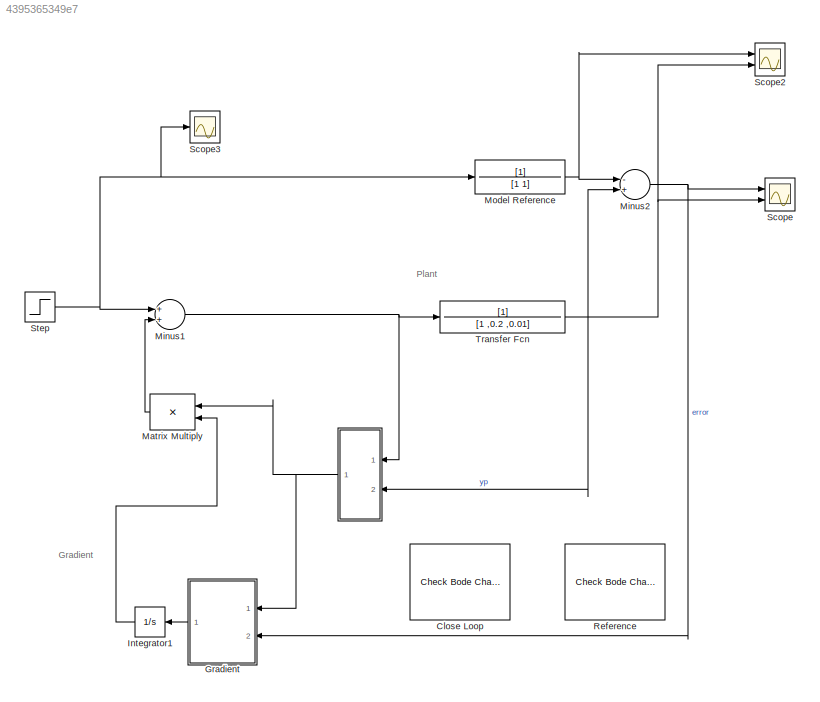
MODEL slx_4395365349e7
KIND model
CONFIG AbsTol = auto
CONFIG EnableMultiTasking = off
CONFIG FixedStep = auto
CONFIG MaxStep = auto
CONFIG MinStep = auto
CONFIG RelTol = 1e-3
CONFIG SampleTimeConstraint = Unconstrained
CONFIG Solver = VariableStepAuto
CONFIG SolverName = VariableStepAuto
CONFIG StartTime = 0.0
CONFIG StopTime = 500
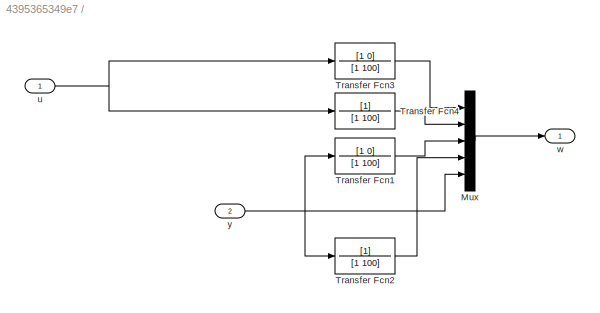
BLOCK [SubSystem]  
  Ports = [2, 1]
  RequestExecContextInheritance = off
BLOCK [Mux]  /Mux
  DisplayOption = bar
  Inputs = 5
  Ports = [5, 1]
BLOCK [TransferFcn]  /Transfer Fcn1
  Denominator = [1 100]
  Numerator = [1 0]
BLOCK [TransferFcn]  /Transfer Fcn2
  Denominator = [1 100]
BLOCK [TransferFcn]  /Transfer Fcn3
  Denominator = [1 100]
  Numerator = [1 0]
BLOCK [TransferFcn]  /Transfer Fcn4
  Denominator = [1 100]
BLOCK [Inport]  /u 
  IconDisplay = Port number
BLOCK [Outport]  /w
  IconDisplay = Port number
BLOCK [Inport]  /y 
  IconDisplay = Port number
  Port = 2
BLOCK [Reference] Close Loop  REF=slctrlblks/Model Verification/Check Bode 
Characteristics
  InstantiateOnLoad = on
  Ports = []
  SourceBlock = slctrlblks/Model Verification/Check Bode \nCharacteristics
  SourceProductBaseCode = SD
  SourceProductName = Simulink Control Design
  SourceType = Checks_Bode
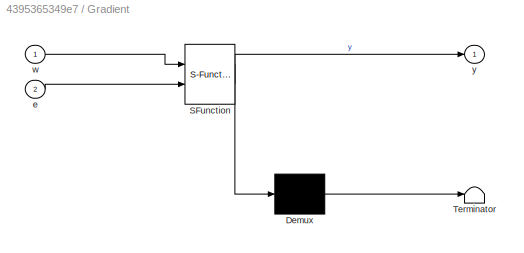
BLOCK [SubSystem] Gradient
  ErrorFcn = Stateflow.Translate.translate
  PermitHierarchicalResolution = ExplicitOnly
  Ports = [2, 1]
  RequestExecContextInheritance = off
  SFBlockType = MATLAB Function
  TreatAsAtomicUnit = on
BLOCK [Demux] Gradient/ Demux 
  Outputs = 1
  Ports = [1, 1]
BLOCK [S-Function] Gradient/ SFunction 
  EnableBusSupport = on
  FunctionName = sf_sfun
  PortCounts = [2 2]
  Ports = [2, 2]
  SFcnIsStateOwnerBlock = off
  SFunctionDeploymentMode = off
  Tag = Stateflow S-Function 2
BLOCK [Terminator] Gradient/ Terminator 
BLOCK [Inport] Gradient/e
  IconDisplay = Port number
  Port = 2
BLOCK [Inport] Gradient/w
  IconDisplay = Port number
BLOCK [Outport] Gradient/y
  IconDisplay = Port number
BLOCK [Integrator] Integrator1
  Ports = [1, 1]
BLOCK [Product] Matrix Multiply
  InputSameDT = off
  Multiplication = Matrix(*)
  OutDataTypeStr = Inherit: Inherit via internal rule
  Ports = [2, 1]
  RndMeth = Floor
  SaturateOnIntegerOverflow = off
BLOCK [Sum] Minus1
  InputSameDT = off
  OutDataTypeStr = Inherit: Inherit via internal rule
  Ports = [2, 1]
  SaturateOnIntegerOverflow = off
BLOCK [Sum] Minus2
  InputSameDT = off
  Inputs = -+
  OutDataTypeStr = Inherit: Inherit via internal rule
  Ports = [2, 1]
  SaturateOnIntegerOverflow = off
BLOCK [TransferFcn] Model Reference
  Denominator = [1 1]
BLOCK [Reference] Reference  REF=slctrlblks/Model Verification/Check Bode 
Characteristics
  InstantiateOnLoad = on
  Ports = []
  SourceBlock = slctrlblks/Model Verification/Check Bode \nCharacteristics
  SourceProductBaseCode = SD
  SourceProductName = Simulink Control Design
  SourceType = Checks_Bode
BLOCK [Scope] Scope
  Floating = off
  NumInputPorts = 2
  Ports = [2]
  ScopeSpecificationString = Simulink.scopes.TimeScopeBlockCfg('CurrentConfiguration', extmgr.ConfigurationSet(extmgr.Configuration('Core','General UI',true),extmgr.Configuration('Core','Source UI',true),extmgr.Configuration('Sources','WiredSimulink',true),extmgr.Configuration('Visuals','Time Domain',true,'SerializedDisplays',{struct('MinYLimReal','-5.57115','MaxYLimReal','8.4499','YLabelReal','','MinYLimMag','0.00000','MaxYL...<+1418ch>
BLOCK [Scope] Scope2
  Floating = off
  NumInputPorts = 2
  Ports = [2]
  ScopeSpecificationString = Simulink.scopes.TimeScopeBlockCfg('CurrentConfiguration', extmgr.ConfigurationSet(extmgr.Configuration('Core','General UI',true),extmgr.Configuration('Core','Source UI',true),extmgr.Configuration('Sources','WiredSimulink',true,'DataLoggingVariableName','ScopeData2'),extmgr.Configuration('Visuals','Time Domain',true,'SerializedDisplays',{struct('MinYLimReal','-4.44702','MaxYLimReal','8.32526','YLab...<+1444ch>
BLOCK [Scope] Scope3
  Floating = off
  NumInputPorts = 1
  Ports = [1]
  ScopeSpecificationString = Simulink.scopes.TimeScopeBlockCfg('CurrentConfiguration', extmgr.ConfigurationSet(extmgr.Configuration('Core','General UI',true),extmgr.Configuration('Core','Source UI',true),extmgr.Configuration('Sources','WiredSimulink',true,'DataLoggingVariableName','ScopeData3'),extmgr.Configuration('Visuals','Time Domain',true,'SerializedDisplays',{struct('MinYLimReal','-0.125','MaxYLimReal','1.125','YLabelRe...<+1351ch>
BLOCK [Step] Step
  SampleTime = 0
BLOCK [TransferFcn] Transfer Fcn
  Denominator = [1 ,0.2 ,0.01]
ANNOTATION (root): Gradient
ANNOTATION (root): Plant
LINE  /Mux:1 ->  /w:1
LINE  /Transfer Fcn1:1 ->  /Mux:3
LINE  /Transfer Fcn2:1 ->  /Mux:4
LINE  /Transfer Fcn3:1 ->  /Mux:1
LINE  /Transfer Fcn4:1 ->  /Mux:2
NET  /u :1 ->  /Transfer Fcn3:1,  /Transfer Fcn4:1
NET  /y :1 ->  /Mux:5,  /Transfer Fcn1:1,  /Transfer Fcn2:1
NET  :1 -> Gradient:1, Matrix Multiply:1
LINE Gradient:1 -> Integrator1:1
LINE Integrator1:1 -> Matrix Multiply:2
LINE Matrix Multiply:1 -> Minus1:2
NET Minus1:1 ->  :1, Transfer Fcn:1
NET Minus2:1 -> Gradient:2, Scope:1
NET Model Reference:1 -> Minus2:1, Scope2:1
NET Step:1 -> Minus1:1, Model Reference:1, Scope3:1
NET Transfer Fcn:1 ->  :2, Minus2:2, Scope2:2, Scope:2
note: NET lines group one-source signal fan-out (src -> all destinations, sorted); 1:1 wires keep LINE
CHART Gradient states=1 transitions=1
  STATE_LABEL 'eML_blk_kernel()'
  STATE_LABEL 'SCRIPT:\nfunction y = fcn(w, e)\nalpha = 0.01;\nI = eye(5);\ngamma = alpha*I;\n\n%deadzone implementation\ndelta= 0.1;\nif abs(e) > delta\n    y = -gamma*w*e;\nelse\n    y = 0;\nend\n'
